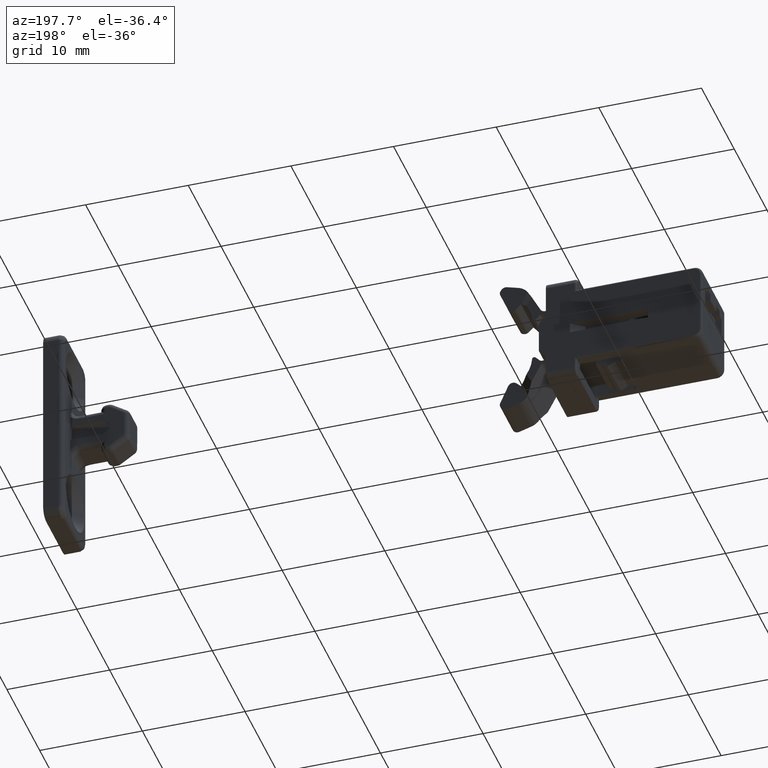
[diagram: clean part render]
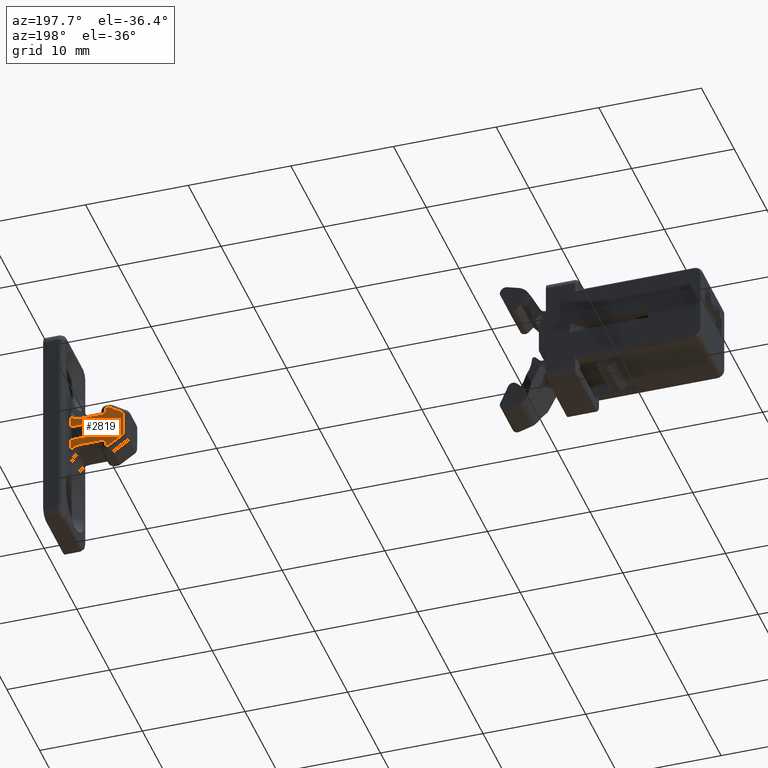
[diagram: same view with one face highlighted and labeled with its STEP entity id]
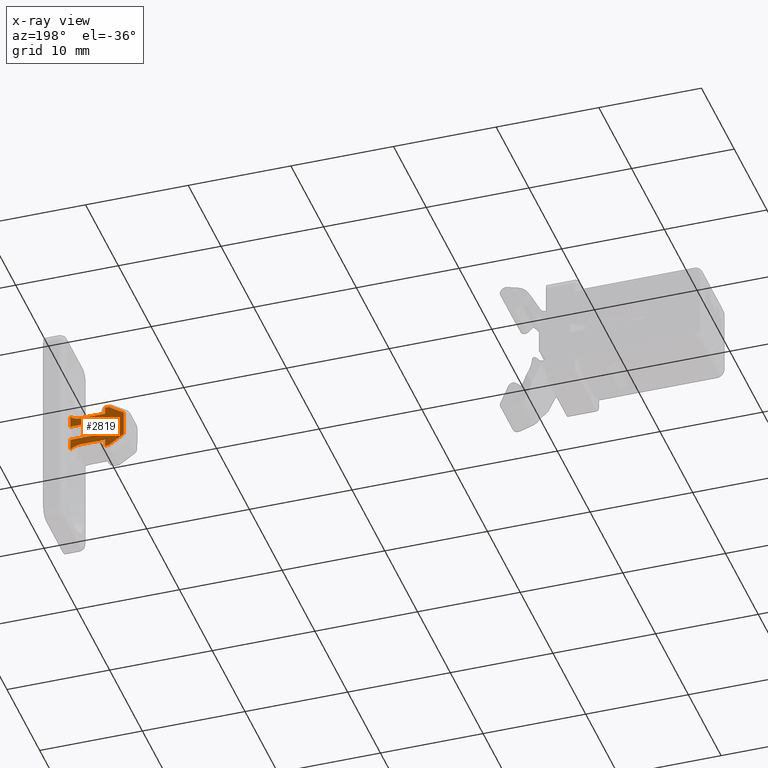
[diagram: x-ray of the same camera — body ghosted, the highlighted face saturated]
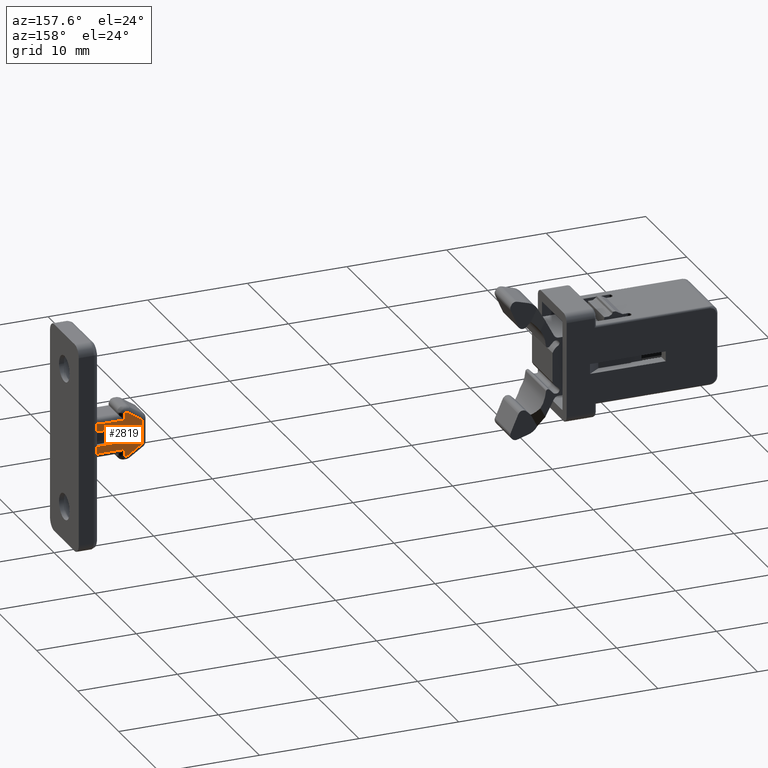
[diagram: same view with one face highlighted and labeled with its STEP entity id]
A machine part, auxiliary view. The second image highlights one B-rep face of the part: STEP entity #2819.
The next image is the same camera in x-ray: the body ghosted, the highlighted face saturated — about 0% of this face is hidden behind the body in this view.
A second angle (auxiliary view) of the same face is appended — the face is thin or edge-on in the first view.
In plain terms, the highlighted face is a freeform B-spline surface patch.
Its self-contained STEP definition (entity closure, byte-faithful):
#748=CARTESIAN_POINT('',(43.922754035772002,1.500000000000000,0.749999999999972));
#749=VERTEX_POINT('',#748);
#755=CARTESIAN_POINT('',(46.972754035771999,1.499999999999946,0.749999999999972));
#756=VERTEX_POINT('',#755);
#757=CARTESIAN_POINT('',(43.922754035772002,1.500000000000000,0.749999999999972));
#758=CARTESIAN_POINT('',(46.972754035771999,1.499999999999946,0.749999999999972));
#759=QUASI_UNIFORM_CURVE('',1,(#757,#758),.UNSPECIFIED.,.F.,.U.);
#760=EDGE_CURVE('',#749,#756,#759,.T.);
#776=CARTESIAN_POINT('',(46.972754035771999,1.499999999999946,-0.749999999999929));
#777=VERTEX_POINT('',#776);
#783=CARTESIAN_POINT('',(43.922754035772002,1.499999999999946,-0.749999999999929));
#784=VERTEX_POINT('',#783);
#785=CARTESIAN_POINT('',(46.972754035771999,1.499999999999946,-0.749999999999929));
#786=CARTESIAN_POINT('',(43.922754035772002,1.499999999999946,-0.749999999999929));
#787=QUASI_UNIFORM_CURVE('',1,(#785,#786),.UNSPECIFIED.,.F.,.U.);
#788=EDGE_CURVE('',#777,#784,#787,.T.);
#818=CARTESIAN_POINT('',(43.922754035772002,1.500000000000000,0.749999999999972));
#819=CARTESIAN_POINT('',(43.172754035772002,1.499999999999946,0.750000000000085));
#820=CARTESIAN_POINT('',(43.172754035772002,1.499999999999946,8.526513E-014));
#821=CARTESIAN_POINT('',(43.172754035772002,1.499999999999946,-0.749999999999915));
#822=CARTESIAN_POINT('',(43.922754035772002,1.499999999999946,-0.749999999999915));
#830=(BOUNDED_CURVE()B_SPLINE_CURVE(2,(#818,#819,#820,#821,#822),.UNSPECIFIED.,.F.,.U.)B_SPLINE_CURVE_WITH_KNOTS((3,2,3),(0.0,0.500000000000000,1.0),.UNSPECIFIED.)CURVE()GEOMETRIC_REPRESENTATION_ITEM()RATIONAL_B_SPLINE_CURVE((1.0,0.707106781186548,1.0,0.707106781186548,1.0))REPRESENTATION_ITEM(''));
#831=EDGE_CURVE('',#749,#784,#830,.T.);
#1886=CARTESIAN_POINT('',(46.972754035771999,1.500000000000000,-1.881966011250035));
#1887=VERTEX_POINT('',#1886);
#1916=CARTESIAN_POINT('',(45.972754035771999,1.500000000000000,-1.499999999999930));
#1917=VERTEX_POINT('',#1916);
#1931=CARTESIAN_POINT('',(46.972754035771999,1.500000000000000,-1.881966011250036));
#1932=CARTESIAN_POINT('',(46.545703052647163,1.500000000000000,-1.499999999999930));
#1933=CARTESIAN_POINT('',(45.972754035771999,1.500000000000000,-1.499999999999930));
#1941=(BOUNDED_CURVE()B_SPLINE_CURVE(2,(#1931,#1932,#1933),.UNSPECIFIED.,.F.,.U.)CURVE()GEOMETRIC_REPRESENTATION_ITEM()QUASI_UNIFORM_CURVE()RATIONAL_B_SPLINE_CURVE((1.0,0.934172358962716,1.0))REPRESENTATION_ITEM(''));
#1942=EDGE_CURVE('',#1887,#1917,#1941,.T.);
#1963=CARTESIAN_POINT('',(43.572754035771901,1.500000000000000,-1.499999999999930));
#1964=VERTEX_POINT('',#1963);
#1978=CARTESIAN_POINT('',(45.972754035771999,1.500000000000000,-1.499999999999930));
#1979=CARTESIAN_POINT('',(43.572754035771901,1.500000000000000,-1.499999999999930));
#1980=QUASI_UNIFORM_CURVE('',1,(#1978,#1979),.UNSPECIFIED.,.F.,.U.);
#1981=EDGE_CURVE('',#1917,#1964,#1980,.T.);
#2008=CARTESIAN_POINT('',(43.572754035771901,1.500000000000000,-2.199999999999931));
#2009=VERTEX_POINT('',#2008);
#2023=CARTESIAN_POINT('',(43.572754035771901,1.500000000000000,-1.499999999999930));
#2024=CARTESIAN_POINT('',(43.572754035771901,1.500000000000000,-2.199999999999931));
#2025=QUASI_UNIFORM_CURVE('',1,(#2023,#2024),.UNSPECIFIED.,.F.,.U.);
#2026=EDGE_CURVE('',#1964,#2009,#2025,.T.);
#2115=CARTESIAN_POINT('',(43.224142133884499,1.500000000000000,-2.199999852831010));
#2116=VERTEX_POINT('',#2115);
#2132=CARTESIAN_POINT('',(43.572754035771901,1.500000000000000,-2.199999999999931));
#2133=CARTESIAN_POINT('',(43.224142133884499,1.500000000000000,-2.199999852831010));
#2134=QUASI_UNIFORM_CURVE('',1,(#2132,#2133),.UNSPECIFIED.,.F.,.U.);
#2135=EDGE_CURVE('',#2009,#2116,#2134,.T.);
#2218=CARTESIAN_POINT('',(41.772754035772053,1.500000000000000,-1.232408000000134));
#2219=VERTEX_POINT('',#2218);
#2233=CARTESIAN_POINT('',(43.224142133884499,1.500000000000000,-2.199999852831010));
#2234=CARTESIAN_POINT('',(41.772754035772053,1.500000000000000,-1.232408000000134));
#2235=QUASI_UNIFORM_CURVE('',1,(#2233,#2234),.UNSPECIFIED.,.F.,.U.);
#2236=EDGE_CURVE('',#2116,#2219,#2235,.T.);
#2319=CARTESIAN_POINT('',(41.772754133884703,1.500000000000000,1.232408852831016));
#2320=VERTEX_POINT('',#2319);
#2336=CARTESIAN_POINT('',(41.772754035772053,1.500000000000000,-1.232408000000134));
#2337=CARTESIAN_POINT('',(41.772754133884703,1.500000000000000,1.232408852831016));
#2338=QUASI_UNIFORM_CURVE('',1,(#2336,#2337),.UNSPECIFIED.,.F.,.U.);
#2339=EDGE_CURVE('',#2219,#2320,#2338,.T.);
#2422=CARTESIAN_POINT('',(43.224142035771898,1.500000000000000,2.200000000000075));
#2423=VERTEX_POINT('',#2422);
#2437=CARTESIAN_POINT('',(41.772754133884703,1.500000000000000,1.232408852831016));
#2438=CARTESIAN_POINT('',(43.224142035771898,1.500000000000000,2.200000000000075));
#2439=QUASI_UNIFORM_CURVE('',1,(#2437,#2438),.UNSPECIFIED.,.F.,.U.);
#2440=EDGE_CURVE('',#2320,#2423,#2439,.T.);
#2523=CARTESIAN_POINT('',(43.572754035771901,1.500000000000000,2.199999999999960));
#2524=VERTEX_POINT('',#2523);
#2538=CARTESIAN_POINT('',(43.224142035771898,1.500000000000000,2.200000000000075));
#2539=CARTESIAN_POINT('',(43.572754035771901,1.500000000000000,2.199999999999960));
#2540=QUASI_UNIFORM_CURVE('',1,(#2538,#2539),.UNSPECIFIED.,.F.,.U.);
#2541=EDGE_CURVE('',#2423,#2524,#2540,.T.);
#2624=CARTESIAN_POINT('',(43.572754035771901,1.500000000000000,1.500000000000085));
#2625=VERTEX_POINT('',#2624);
#2639=CARTESIAN_POINT('',(43.572754035771901,1.500000000000000,2.199999999999960));
#2640=CARTESIAN_POINT('',(43.572754035771901,1.500000000000000,1.500000000000085));
#2641=QUASI_UNIFORM_CURVE('',1,(#2639,#2640),.UNSPECIFIED.,.F.,.U.);
#2642=EDGE_CURVE('',#2524,#2625,#2641,.T.);
#2663=CARTESIAN_POINT('',(45.972754035771999,1.500000000000000,1.500000000000085));
#2664=VERTEX_POINT('',#2663);
#2678=CARTESIAN_POINT('',(43.572754035771901,1.500000000000000,1.500000000000085));
#2679=CARTESIAN_POINT('',(45.972754035771999,1.500000000000000,1.500000000000085));
#2680=QUASI_UNIFORM_CURVE('',1,(#2678,#2679),.UNSPECIFIED.,.F.,.U.);
#2681=EDGE_CURVE('',#2625,#2664,#2680,.T.);
#2709=CARTESIAN_POINT('',(46.972754035771999,1.500000000000000,1.881966011250190));
#2710=VERTEX_POINT('',#2709);
#2726=CARTESIAN_POINT('',(45.972754035771999,1.500000000000000,1.500000000000085));
#2727=CARTESIAN_POINT('',(46.545703052647163,1.500000000000000,1.500000000000085));
#2728=CARTESIAN_POINT('',(46.972754035771999,1.500000000000000,1.881966011250191));
#2736=(BOUNDED_CURVE()B_SPLINE_CURVE(2,(#2726,#2727,#2728),.UNSPECIFIED.,.F.,.U.)CURVE()GEOMETRIC_REPRESENTATION_ITEM()QUASI_UNIFORM_CURVE()RATIONAL_B_SPLINE_CURVE((1.0,0.934172358962716,1.0))REPRESENTATION_ITEM(''));
#2737=EDGE_CURVE('',#2664,#2710,#2736,.T.);
#2788=CARTESIAN_POINT('',(41.513014624696943,1.500000000000000,-2.419780074079981));
#2789=CARTESIAN_POINT('',(47.232495306512043,1.500000000000000,-2.419780074079981));
#2790=CARTESIAN_POINT('',(41.513014624696943,1.500000000000000,2.419780113419191));
#2791=CARTESIAN_POINT('',(47.232495306512043,1.500000000000000,2.419780113419191));
#2792=B_SPLINE_SURFACE_WITH_KNOTS('',1,1,((#2788,#2790),(#2789,#2791)),.UNSPECIFIED.,.F.,.F.,.U.,(2,2),(2,2),(0.0,5.719480681815099),(0.0,4.839560187499171),.UNSPECIFIED.);
#2793=ORIENTED_EDGE('',*,*,#831,.T.);
#2794=ORIENTED_EDGE('',*,*,#788,.F.);
#2795=CARTESIAN_POINT('',(46.972754035771999,1.500000000000000,-1.881966011250035));
#2796=CARTESIAN_POINT('',(46.972754035771999,1.499999999999946,-0.749999999999929));
#2797=QUASI_UNIFORM_CURVE('',1,(#2795,#2796),.UNSPECIFIED.,.F.,.U.);
#2798=EDGE_CURVE('',#1887,#777,#2797,.T.);
#2799=ORIENTED_EDGE('',*,*,#2798,.F.);
#2800=ORIENTED_EDGE('',*,*,#1942,.T.);
#2801=ORIENTED_EDGE('',*,*,#1981,.T.);
#2802=ORIENTED_EDGE('',*,*,#2026,.T.);
#2803=ORIENTED_EDGE('',*,*,#2135,.T.);
#2804=ORIENTED_EDGE('',*,*,#2236,.T.);
#2805=ORIENTED_EDGE('',*,*,#2339,.T.);
#2806=ORIENTED_EDGE('',*,*,#2440,.T.);
#2807=ORIENTED_EDGE('',*,*,#2541,.T.);
#2808=ORIENTED_EDGE('',*,*,#2642,.T.);
#2809=ORIENTED_EDGE('',*,*,#2681,.T.);
#2810=ORIENTED_EDGE('',*,*,#2737,.T.);
#2811=CARTESIAN_POINT('',(46.972754035771999,1.499999999999946,0.749999999999972));
#2812=CARTESIAN_POINT('',(46.972754035771999,1.500000000000000,1.881966011250190));
#2813=QUASI_UNIFORM_CURVE('',1,(#2811,#2812),.UNSPECIFIED.,.F.,.U.);
#2814=EDGE_CURVE('',#756,#2710,#2813,.T.);
#2815=ORIENTED_EDGE('',*,*,#2814,.F.);
#2816=ORIENTED_EDGE('',*,*,#760,.F.);
#2817=EDGE_LOOP('',(#2793,#2794,#2799,#2800,#2801,#2802,#2803,#2804,#2805,#2806,#2807,#2808,#2809,#2810,#2815,#2816));
#2818=FACE_OUTER_BOUND('',#2817,.T.);
#2819=ADVANCED_FACE('',(#2818),#2792,.F.);